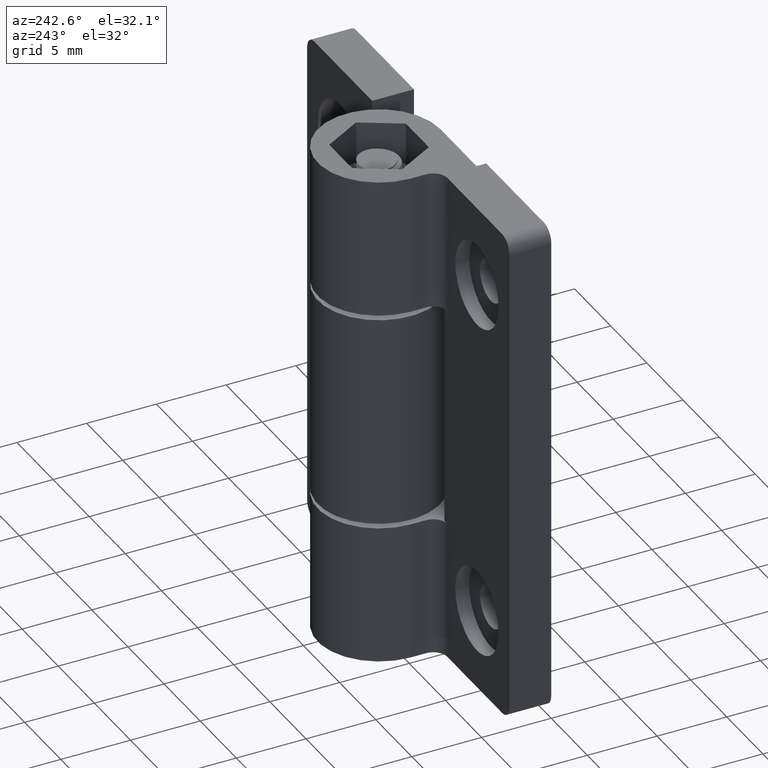
[diagram: clean part render]
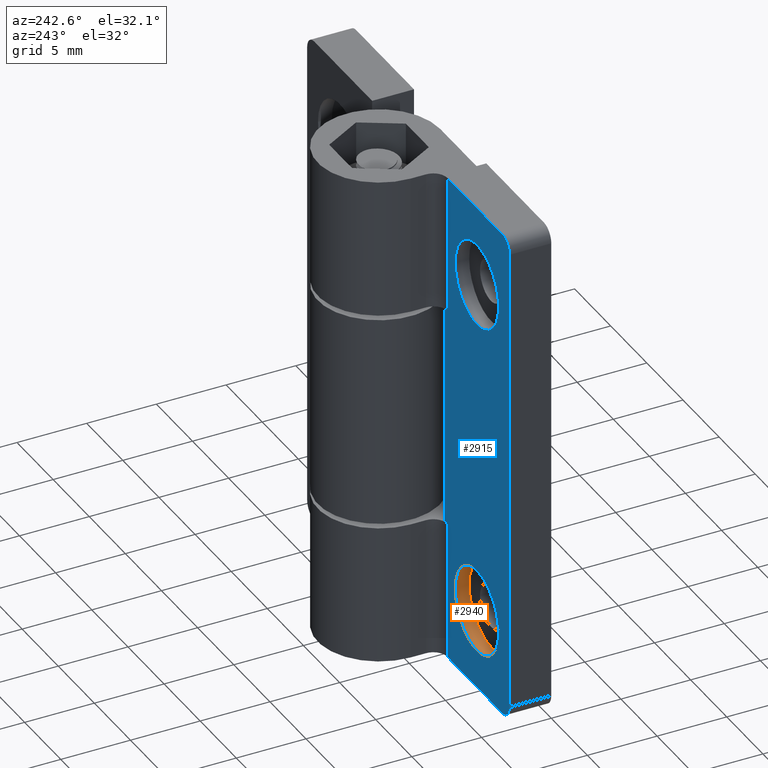
[diagram: same view with the hole feature highlighted: cylindrical wall and planar end face, labeled with their STEP entity ids]
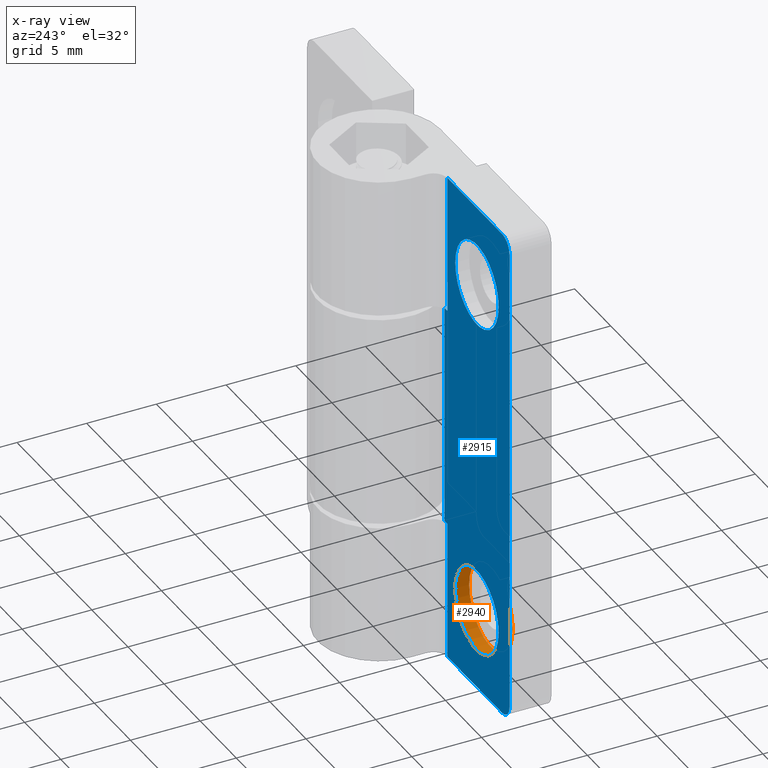
[diagram: x-ray of the same camera — body ghosted, the hole faces saturated]
A machine part, auxiliary view. The highlighted faces form one hole feature of diameter 6 mm: the cylindrical wall (entity #2940, orange) and its adjacent planar end face (entity #2915, blue) — they share a circular edge in the B-rep.
The next image is the same camera in x-ray (body ghosted, the hole faces saturated) — the bore reads through the body.
Wall:
#308=FACE_BOUND('',#553,.T.);
#436=FACE_OUTER_BOUND('',#552,.T.);
#552=EDGE_LOOP('',(#2050));
#553=EDGE_LOOP('',(#2051));
#986=CIRCLE('',#3035,3.);
#1007=CIRCLE('',#3080,3.);
#1067=VERTEX_POINT('',#3769);
#1107=VERTEX_POINT('',#3894);
#1466=EDGE_CURVE('',#1067,#1067,#986,.T.);
#1527=EDGE_CURVE('',#1107,#1107,#1007,.T.);
#2050=ORIENTED_EDGE('',*,*,#1527,.T.);
#2051=ORIENTED_EDGE('',*,*,#1466,.F.);
#2891=CYLINDRICAL_SURFACE('',#3082,3.);
#2940=ADVANCED_FACE('',(#436,#308),#2891,.F.);
#3035=AXIS2_PLACEMENT_3D('',#3770,#3237,#3238);
#3080=AXIS2_PLACEMENT_3D('',#3895,#3367,#3368);
#3082=AXIS2_PLACEMENT_3D('',#3898,#3371,#3372);
#3237=DIRECTION('center_axis',(5.78241158658936E-17,0.,-1.));
#3238=DIRECTION('ref_axis',(1.,0.,5.78241158658936E-17));
#3367=DIRECTION('center_axis',(5.78241158658936E-17,0.,-1.));
#3368=DIRECTION('ref_axis',(1.,0.,5.78241158658936E-17));
#3371=DIRECTION('center_axis',(5.78241158658936E-17,0.,-1.));
#3372=DIRECTION('ref_axis',(1.,0.,5.78241158658936E-17));
#3769=CARTESIAN_POINT('',(1.5,12.25,3.));
#3770=CARTESIAN_POINT('Origin',(4.5,12.25,3.));
#3894=CARTESIAN_POINT('',(1.5,12.25,2.));
#3895=CARTESIAN_POINT('Origin',(4.5,12.25,2.));
#3898=CARTESIAN_POINT('Origin',(4.5,12.25,2.5));
End face:
#302=FACE_BOUND('',#522,.T.);
#303=FACE_BOUND('',#523,.T.);
#342=PLANE('',#3032);
#411=FACE_OUTER_BOUND('',#521,.T.);
#521=EDGE_LOOP('',(#1932,#1933,#1934,#1935,#1936,#1937,#1938,#1939,#1940,
#1941));
#522=EDGE_LOOP('',(#1942));
#523=EDGE_LOOP('',(#1943));
#672=LINE('',#3751,#828);
#673=LINE('',#3755,#829);
#674=LINE('',#3757,#830);
#675=LINE('',#3759,#831);
#676=LINE('',#3761,#832);
#677=LINE('',#3763,#833);
#678=LINE('',#3765,#834);
#679=LINE('',#3766,#835);
#828=VECTOR('',#3225,34.);
#829=VECTOR('',#3228,7.6);
#830=VECTOR('',#3229,10.);
#831=VECTOR('',#3230,0.4);
#832=VECTOR('',#3231,16.);
#833=VECTOR('',#3232,0.4);
#834=VECTOR('',#3233,10.);
#835=VECTOR('',#3234,7.6);
#982=CIRCLE('',#3030,1.);
#984=CIRCLE('',#3033,1.);
#985=CIRCLE('',#3034,3.);
#986=CIRCLE('',#3035,3.);
#1054=VERTEX_POINT('',#3741);
#1055=VERTEX_POINT('',#3742);
#1058=VERTEX_POINT('',#3750);
#1059=VERTEX_POINT('',#3752);
#1060=VERTEX_POINT('',#3754);
#1061=VERTEX_POINT('',#3756);
#1062=VERTEX_POINT('',#3758);
#1063=VERTEX_POINT('',#3760);
#1064=VERTEX_POINT('',#3762);
#1065=VERTEX_POINT('',#3764);
#1066=VERTEX_POINT('',#3767);
#1067=VERTEX_POINT('',#3769);
#1452=EDGE_CURVE('',#1054,#1055,#982,.T.);
#1456=EDGE_CURVE('',#1058,#1054,#672,.T.);
#1457=EDGE_CURVE('',#1059,#1058,#984,.T.);
#1458=EDGE_CURVE('',#1060,#1059,#673,.T.);
#1459=EDGE_CURVE('',#1061,#1060,#674,.T.);
#1460=EDGE_CURVE('',#1062,#1061,#675,.T.);
#1461=EDGE_CURVE('',#1063,#1062,#676,.T.);
#1462=EDGE_CURVE('',#1063,#1064,#677,.T.);
#1463=EDGE_CURVE('',#1065,#1064,#678,.T.);
#1464=EDGE_CURVE('',#1055,#1065,#679,.T.);
#1465=EDGE_CURVE('',#1066,#1066,#985,.T.);
#1466=EDGE_CURVE('',#1067,#1067,#986,.T.);
#1932=ORIENTED_EDGE('',*,*,#1452,.F.);
#1933=ORIENTED_EDGE('',*,*,#1456,.F.);
#1934=ORIENTED_EDGE('',*,*,#1457,.F.);
#1935=ORIENTED_EDGE('',*,*,#1458,.F.);
#1936=ORIENTED_EDGE('',*,*,#1459,.F.);
#1937=ORIENTED_EDGE('',*,*,#1460,.F.);
#1938=ORIENTED_EDGE('',*,*,#1461,.F.);
#1939=ORIENTED_EDGE('',*,*,#1462,.T.);
#1940=ORIENTED_EDGE('',*,*,#1463,.F.);
#1941=ORIENTED_EDGE('',*,*,#1464,.F.);
#1942=ORIENTED_EDGE('',*,*,#1465,.T.);
#1943=ORIENTED_EDGE('',*,*,#1466,.T.);
#2915=ADVANCED_FACE('',(#411,#302,#303),#342,.T.);
#3030=AXIS2_PLACEMENT_3D('',#3743,#3217,#3218);
#3032=AXIS2_PLACEMENT_3D('',#3749,#3223,#3224);
#3033=AXIS2_PLACEMENT_3D('',#3753,#3226,#3227);
#3034=AXIS2_PLACEMENT_3D('',#3768,#3235,#3236);
#3035=AXIS2_PLACEMENT_3D('',#3770,#3237,#3238);
#3217=DIRECTION('center_axis',(5.78241158658936E-17,0.,-1.));
#3218=DIRECTION('ref_axis',(-0.707106781186547,0.707106781186548,-4.088782444489E-17));
#3223=DIRECTION('center_axis',(-5.78241158658936E-17,0.,1.));
#3224=DIRECTION('ref_axis',(1.,0.,0.));
#3225=DIRECTION('',(0.,1.,0.));
#3226=DIRECTION('center_axis',(5.78241158658936E-17,0.,-1.));
#3227=DIRECTION('ref_axis',(-0.707106781186547,-0.707106781186548,-4.088782444489E-17));
#3228=DIRECTION('',(-1.,0.,-5.78241158658936E-17));
#3229=DIRECTION('',(0.,-1.,0.));
#3230=DIRECTION('',(-1.,0.,0.));
#3231=DIRECTION('',(0.,-1.,0.));
#3232=DIRECTION('',(-1.,0.,0.));
#3233=DIRECTION('',(0.,-1.,0.));
#3234=DIRECTION('',(1.,0.,5.78241158658936E-17));
#3235=DIRECTION('center_axis',(5.78241158658936E-17,0.,-1.));
#3236=DIRECTION('ref_axis',(1.,0.,5.78241158658936E-17));
#3237=DIRECTION('center_axis',(5.78241158658936E-17,0.,-1.));
#3238=DIRECTION('ref_axis',(1.,0.,5.78241158658936E-17));
#3741=CARTESIAN_POINT('',(1.83697019872103E-16,17.,3.));
#3742=CARTESIAN_POINT('',(1.,18.,3.));
#3743=CARTESIAN_POINT('Origin',(1.,17.,3.));
#3749=CARTESIAN_POINT('Origin',(0.,0.,3.));
#3750=CARTESIAN_POINT('',(1.83697019872103E-16,-17.,3.));
#3751=CARTESIAN_POINT('',(1.83697019872103E-16,0.,3.));
#3752=CARTESIAN_POINT('',(1.,-18.,3.));
#3753=CARTESIAN_POINT('Origin',(1.,-17.,3.));
#3754=CARTESIAN_POINT('',(8.6,-18.,3.));
#3755=CARTESIAN_POINT('',(9.6,-18.,3.));
#3756=CARTESIAN_POINT('',(8.6,-8.,3.));
#3757=CARTESIAN_POINT('',(8.6,0.,3.));
#3758=CARTESIAN_POINT('',(9.,-8.,3.));
#3759=CARTESIAN_POINT('',(9.,-8.,3.));
#3760=CARTESIAN_POINT('',(9.,8.,3.));
#3761=CARTESIAN_POINT('',(9.,4.125,3.));
#3762=CARTESIAN_POINT('',(8.6,8.,3.));
#3763=CARTESIAN_POINT('',(9.,8.,3.));
#3764=CARTESIAN_POINT('',(8.6,18.,3.));
#3765=CARTESIAN_POINT('',(8.6,0.,3.));
#3766=CARTESIAN_POINT('',(9.6,18.,3.));
#3767=CARTESIAN_POINT('',(1.5,-12.25,3.));
#3768=CARTESIAN_POINT('Origin',(4.5,-12.25,3.));
#3769=CARTESIAN_POINT('',(1.5,12.25,3.));
#3770=CARTESIAN_POINT('Origin',(4.5,12.25,3.));